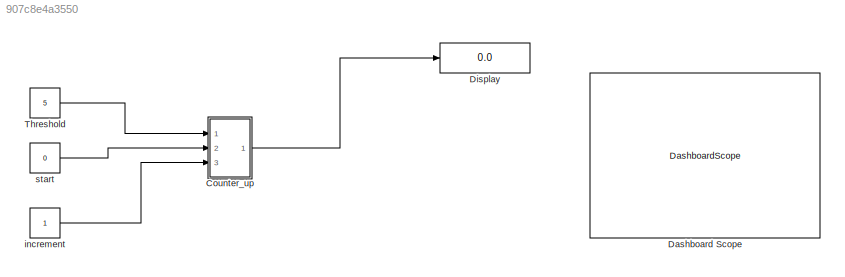
MODEL slx_907c8e4a3550
KIND model
CONFIG AbsTol = auto
CONFIG EnableMultiTasking = off
CONFIG FixedStep = auto
CONFIG MaxStep = auto
CONFIG MinStep = auto
CONFIG RelTol = 1e-3
CONFIG SampleTimeConstraint = Unconstrained
CONFIG SolverName = VariableStepAuto
CONFIG StartTime = 0.0
CONFIG StopTime = 10.0
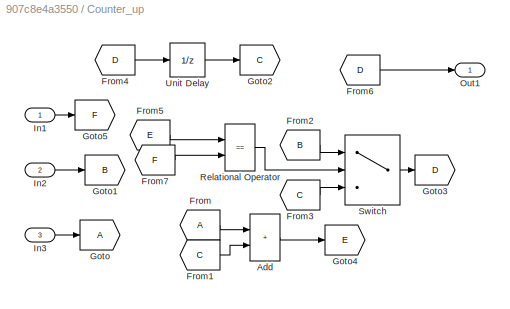
BLOCK [SubSystem] Counter_up
  Ports = [3, 1]
  RequestExecContextInheritance = off
BLOCK [Sum] Counter_up/Add
  IconShape = rectangular
  Ports = [2, 1]
BLOCK [From] Counter_up/From
BLOCK [From] Counter_up/From1
  GotoTag = C
BLOCK [From] Counter_up/From2
  GotoTag = B
BLOCK [From] Counter_up/From3
  GotoTag = C
BLOCK [From] Counter_up/From4
  GotoTag = D
BLOCK [From] Counter_up/From5
  GotoTag = E
BLOCK [From] Counter_up/From6
  GotoTag = D
BLOCK [From] Counter_up/From7
  GotoTag = F
BLOCK [Goto] Counter_up/Goto
BLOCK [Goto] Counter_up/Goto1
  GotoTag = B
BLOCK [Goto] Counter_up/Goto2
  GotoTag = C
BLOCK [Goto] Counter_up/Goto3
  GotoTag = D
BLOCK [Goto] Counter_up/Goto4
  GotoTag = E
BLOCK [Goto] Counter_up/Goto5
  GotoTag = F
BLOCK [Inport] Counter_up/In1
BLOCK [Inport] Counter_up/In2
  Port = 2
BLOCK [Inport] Counter_up/In3
  Port = 3
BLOCK [Outport] Counter_up/Out1
BLOCK [RelationalOperator] Counter_up/Relational Operator
  InputSameDT = off
  Operator = ==
  OutDataTypeStr = boolean
  Ports = [2, 1]
  RndMeth = Simplest
BLOCK [Switch] Counter_up/Switch
  Criteria = u2 > Threshold
  InputSameDT = off
  SaturateOnIntegerOverflow = off
BLOCK [UnitDelay] Counter_up/Unit Delay
  HasFrameUpgradeWarning = on
BLOCK [DashboardScope] Dashboard Scope
  NormalizeYAxis = on
  Ymax = 6
  Ymin = 0
BLOCK [Display] Display
  Decimation = 1
  Ports = [1]
BLOCK [Constant] Threshold
  Value = 5
BLOCK [Constant] increment
BLOCK [Constant] start
  Value = 0
LINE Counter_up/Add:1 -> Counter_up/Goto4:1
LINE Counter_up/From1:1 -> Counter_up/Add:2
LINE Counter_up/From2:1 -> Counter_up/Switch:1
LINE Counter_up/From3:1 -> Counter_up/Switch:3
LINE Counter_up/From4:1 -> Counter_up/Unit Delay:1
LINE Counter_up/From5:1 -> Counter_up/Relational Operator:1
LINE Counter_up/From6:1 -> Counter_up/Out1:1
LINE Counter_up/From7:1 -> Counter_up/Relational Operator:2
LINE Counter_up/From:1 -> Counter_up/Add:1
LINE Counter_up/In1:1 -> Counter_up/Goto5:1
LINE Counter_up/In2:1 -> Counter_up/Goto1:1
LINE Counter_up/In3:1 -> Counter_up/Goto:1
LINE Counter_up/Relational Operator:1 -> Counter_up/Switch:2
LINE Counter_up/Switch:1 -> Counter_up/Goto3:1
LINE Counter_up/Unit Delay:1 -> Counter_up/Goto2:1
LINE Counter_up:1 -> Display:1
LINE Threshold:1 -> Counter_up:1
LINE increment:1 -> Counter_up:3
LINE start:1 -> Counter_up:2
